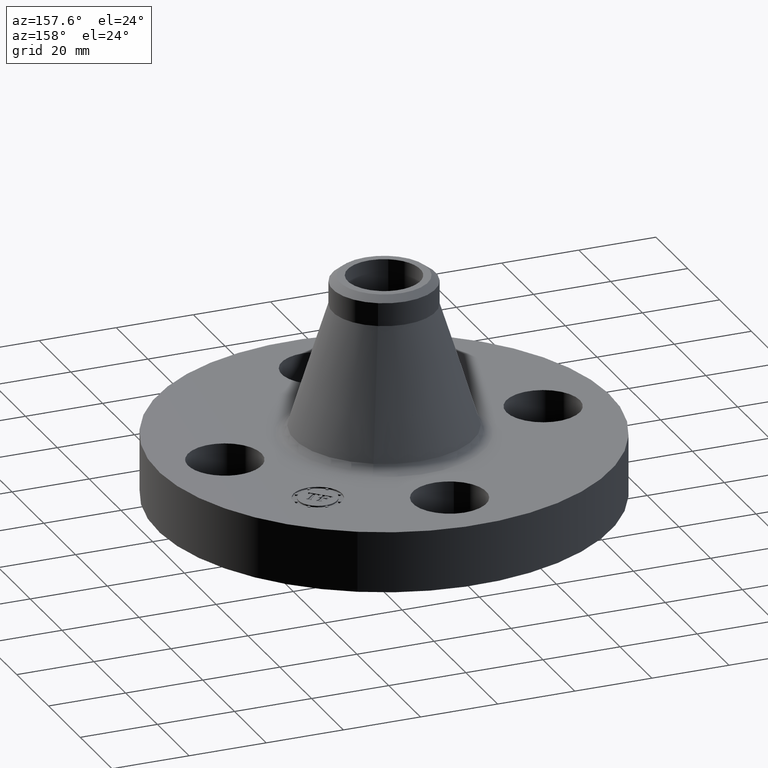
[diagram: clean part render]
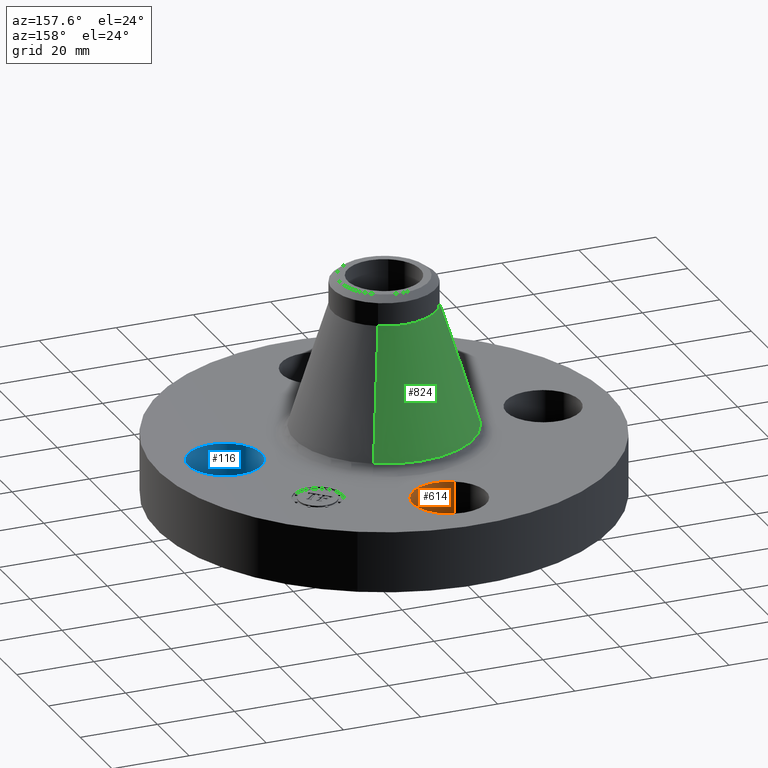
[diagram: same view with three faces highlighted in distinct colors, each labeled with its STEP entity id]
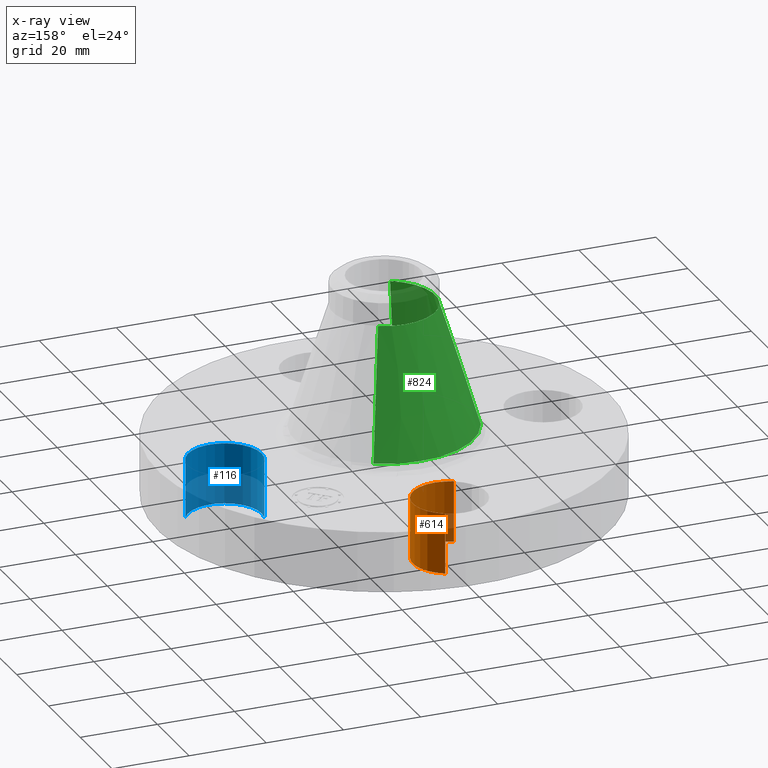
[diagram: x-ray of the same camera — body ghosted, the three highlighted faces saturated]
A machine part, auxiliary view with three faces highlighted in distinct colors.
The next image is the same camera in x-ray (body ghosted, the three faces saturated) — at least one of them is partly hidden behind the body in this view.
Their STEP definitions:

[orange] entity #614 — the highlighted cylindrical surface (partial cylindrical patch) has radius 9.525 mm, axis along (0, 0, -1).
#216=AXIS2_PLACEMENT_3D('Circle Axis2P3D',#214,#215,$) ;
#314=AXIS2_PLACEMENT_3D('Circle Axis2P3D',#312,#313,$) ;
#606=AXIS2_PLACEMENT_3D('Cylinder Axis2P3D',#603,#604,#605) ;
#209=CARTESIAN_POINT('Vertex',(-0.179784576973,1.29590653933,0.)) ;
#211=CARTESIAN_POINT('Vertex',(0.179784576973,1.95409346072,0.)) ;
#214=CARTESIAN_POINT('Axis2P3D Location',(3.49676543189E-017,1.62500000003,0.)) ;
#312=CARTESIAN_POINT('Axis2P3D Location',(3.49676543189E-017,1.625,0.620000000002)) ;
#316=CARTESIAN_POINT('Vertex',(0.179784576973,1.9540934607,0.620000000002)) ;
#318=CARTESIAN_POINT('Vertex',(-0.179784576977,1.2959065393,0.619999999987)) ;
#579=CARTESIAN_POINT('Line Origine',(-0.179784576977,1.2959065393,0.310000000001)) ;
#584=CARTESIAN_POINT('Line Origine',(0.179784576977,1.95409346072,0.310000000001)) ;
#603=CARTESIAN_POINT('Axis2P3D Location',(-2.98507657293E-016,1.62500000001,0.616062992128)) ;
#215=DIRECTION('Axis2P3D Direction',(0.,0.,-0.0393700787402)) ;
#313=DIRECTION('Axis2P3D Direction',(0.,0.,-0.0393700787402)) ;
#580=DIRECTION('Vector Direction',(0.,0.,-0.0393700787402)) ;
#585=DIRECTION('Vector Direction',(0.,0.,-0.0393700787402)) ;
#604=DIRECTION('Axis2P3D Direction',(0.,0.,-0.0393700787402)) ;
#605=DIRECTION('Axis2P3D XDirection',(0.0188750212049,0.0345504945626,0.)) ;
#581=VECTOR('Line Direction',#580,0.0393700787402) ;
#586=VECTOR('Line Direction',#585,0.0393700787402) ;
#609=ORIENTED_EDGE('',*,*,#588,.F.) ;
#610=ORIENTED_EDGE('',*,*,#218,.T.) ;
#611=ORIENTED_EDGE('',*,*,#583,.T.) ;
#612=ORIENTED_EDGE('',*,*,#320,.F.) ;
#614=ADVANCED_FACE('PartBody',(#613),#607,.F.) ;
#217=CIRCLE('generated circle',#216,0.374999999988) ;
#315=CIRCLE('generated circle',#314,0.374999999988) ;
#607=CYLINDRICAL_SURFACE('generated cylinder',#606,0.375000000001) ;
#218=EDGE_CURVE('',#212,#210,#217,.T.) ;
#320=EDGE_CURVE('',#317,#319,#315,.T.) ;
#583=EDGE_CURVE('',#210,#319,#582,.F.) ;
#588=EDGE_CURVE('',#212,#317,#587,.F.) ;
#608=EDGE_LOOP('',(#609,#610,#611,#612)) ;
#613=FACE_OUTER_BOUND('',#608,.T.) ;
#582=LINE('Line',#579,#581) ;
#587=LINE('Line',#584,#586) ;
#210=VERTEX_POINT('',#209) ;
#212=VERTEX_POINT('',#211) ;
#317=VERTEX_POINT('',#316) ;
#319=VERTEX_POINT('',#318) ;

[blue] entity #116 — the highlighted cylindrical surface (partial cylindrical patch) has radius 9.525 mm, axis along (0, -0, -1).
#98=AXIS2_PLACEMENT_3D('Cylinder Axis2P3D',#95,#96,#97) ;
#102=AXIS2_PLACEMENT_3D('Circle Axis2P3D',#100,#101,$) ;
#107=AXIS2_PLACEMENT_3D('Circle Axis2P3D',#105,#106,$) ;
#40=CARTESIAN_POINT('Line Origine',(1.2959065393,0.179784576977,0.310000000001)) ;
#44=CARTESIAN_POINT('Vertex',(1.2959065393,0.179784576977,0.)) ;
#46=CARTESIAN_POINT('Vertex',(1.2959065393,0.179784576977,0.619999999987)) ;
#53=CARTESIAN_POINT('Vertex',(1.95409346072,-0.179784576977,2.55543617763E-013)) ;
#56=CARTESIAN_POINT('Line Origine',(1.95409346072,-0.179784576977,0.310000000001)) ;
#60=CARTESIAN_POINT('Vertex',(1.95409346071,-0.179784576986,0.620000000002)) ;
#95=CARTESIAN_POINT('Axis2P3D Location',(1.62500000001,0.,0.616062992128)) ;
#100=CARTESIAN_POINT('Axis2P3D Location',(1.62500000001,0.,2.55543617763E-013)) ;
#105=CARTESIAN_POINT('Axis2P3D Location',(1.62500000001,0.,0.619999999987)) ;
#41=DIRECTION('Vector Direction',(0.,0.,-0.0393700787402)) ;
#57=DIRECTION('Vector Direction',(0.,0.,-0.0393700787402)) ;
#96=DIRECTION('Axis2P3D Direction',(0.,-0.,-0.0393700787402)) ;
#97=DIRECTION('Axis2P3D XDirection',(0.0345504945626,-0.0188750212049,0.)) ;
#101=DIRECTION('Axis2P3D Direction',(0.,-0.,-0.0393700787402)) ;
#106=DIRECTION('Axis2P3D Direction',(0.,-0.,-0.0393700787402)) ;
#42=VECTOR('Line Direction',#41,0.0393700787402) ;
#58=VECTOR('Line Direction',#57,0.0393700787402) ;
#111=ORIENTED_EDGE('',*,*,#62,.F.) ;
#112=ORIENTED_EDGE('',*,*,#104,.T.) ;
#113=ORIENTED_EDGE('',*,*,#48,.T.) ;
#114=ORIENTED_EDGE('',*,*,#109,.F.) ;
#116=ADVANCED_FACE('PartBody',(#115),#99,.F.) ;
#103=CIRCLE('generated circle',#102,0.375000000001) ;
#108=CIRCLE('generated circle',#107,0.375000000001) ;
#99=CYLINDRICAL_SURFACE('generated cylinder',#98,0.375000000001) ;
#48=EDGE_CURVE('',#45,#47,#43,.F.) ;
#62=EDGE_CURVE('',#54,#61,#59,.F.) ;
#104=EDGE_CURVE('',#54,#45,#103,.T.) ;
#109=EDGE_CURVE('',#61,#47,#108,.T.) ;
#110=EDGE_LOOP('',(#111,#112,#113,#114)) ;
#115=FACE_OUTER_BOUND('',#110,.T.) ;
#43=LINE('Line',#40,#42) ;
#59=LINE('Line',#56,#58) ;
#45=VERTEX_POINT('',#44) ;
#47=VERTEX_POINT('',#46) ;
#54=VERTEX_POINT('',#53) ;
#61=VERTEX_POINT('',#60) ;

[green] entity #824 — the highlighted conical surface has half-angle 17.256 deg.
#636=AXIS2_PLACEMENT_3D('Circle Axis2P3D',#634,#635,$) ;
#797=AXIS2_PLACEMENT_3D('Cone Axis2P3D',#794,#795,#796) ;
#808=AXIS2_PLACEMENT_3D('Circle Axis2P3D',#806,#807,$) ;
#631=CARTESIAN_POINT('Vertex',(-0.438090692601,-0.801919633801,0.704403161619)) ;
#634=CARTESIAN_POINT('Axis2P3D Location',(0.,0.,0.704403161619)) ;
#638=CARTESIAN_POINT('Vertex',(0.438090692601,0.801919633801,0.704403161619)) ;
#794=CARTESIAN_POINT('Axis2P3D Location',(0.,0.,1.95603061929)) ;
#799=CARTESIAN_POINT('Line Origine',(-0.344894550183,-0.631325239395,1.33021689046)) ;
#803=CARTESIAN_POINT('Vertex',(-0.251698407768,-0.460730844994,1.95603061929)) ;
#806=CARTESIAN_POINT('Axis2P3D Location',(0.,0.,1.95603061929)) ;
#810=CARTESIAN_POINT('Vertex',(0.251698407768,0.460730844994,1.95603061929)) ;
#813=CARTESIAN_POINT('Line Origine',(0.344894550183,0.631325239395,1.33021689046)) ;
#635=DIRECTION('Axis2P3D Direction',(-0.,0.,-0.0393700787402)) ;
#795=DIRECTION('Axis2P3D Direction',(0.,0.,-0.0393700787402)) ;
#796=DIRECTION('Axis2P3D XDirection',(-0.0188750212049,-0.0345504945626,0.)) ;
#800=DIRECTION('Vector Direction',(-0.00559909232789,-0.0102490697589,-0.0375980030612)) ;
#807=DIRECTION('Axis2P3D Direction',(-0.,0.,-0.0393700787402)) ;
#814=DIRECTION('Vector Direction',(0.00559909232789,0.0102490697589,-0.0375980030612)) ;
#801=VECTOR('Line Direction',#800,0.0393700787402) ;
#815=VECTOR('Line Direction',#814,0.0393700787402) ;
#819=ORIENTED_EDGE('',*,*,#640,.F.) ;
#820=ORIENTED_EDGE('',*,*,#805,.T.) ;
#821=ORIENTED_EDGE('',*,*,#812,.T.) ;
#822=ORIENTED_EDGE('',*,*,#817,.F.) ;
#824=ADVANCED_FACE('PartBody',(#823),#798,.T.) ;
#637=CIRCLE('generated circle',#636,0.913782552919) ;
#809=CIRCLE('generated circle',#808,0.525000000002) ;
#798=CONICAL_SURFACE('Cone',#797,0.525000000002,0.301172693271) ;
#640=EDGE_CURVE('',#632,#639,#637,.T.) ;
#805=EDGE_CURVE('',#632,#804,#802,.F.) ;
#812=EDGE_CURVE('',#804,#811,#809,.T.) ;
#817=EDGE_CURVE('',#639,#811,#816,.F.) ;
#818=EDGE_LOOP('',(#819,#820,#821,#822)) ;
#823=FACE_OUTER_BOUND('',#818,.T.) ;
#802=LINE('Line',#799,#801) ;
#816=LINE('Line',#813,#815) ;
#632=VERTEX_POINT('',#631) ;
#639=VERTEX_POINT('',#638) ;
#804=VERTEX_POINT('',#803) ;
#811=VERTEX_POINT('',#810) ;